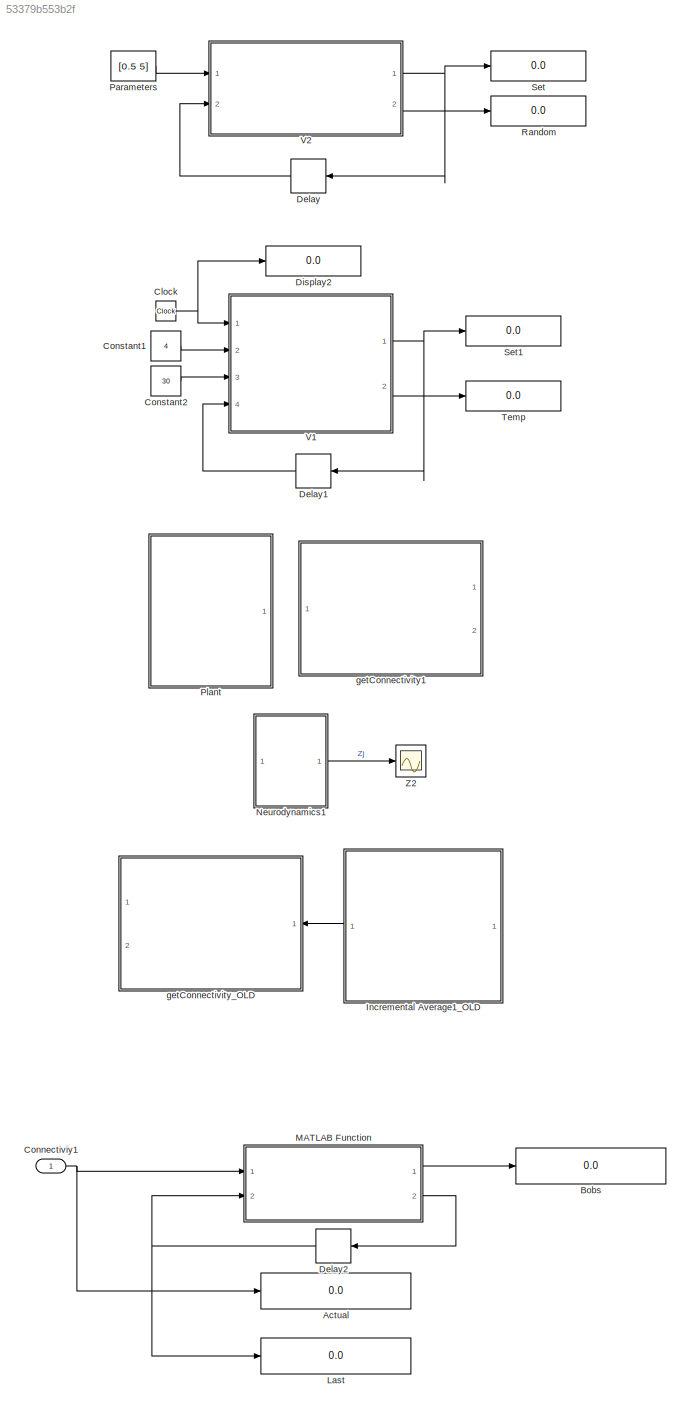
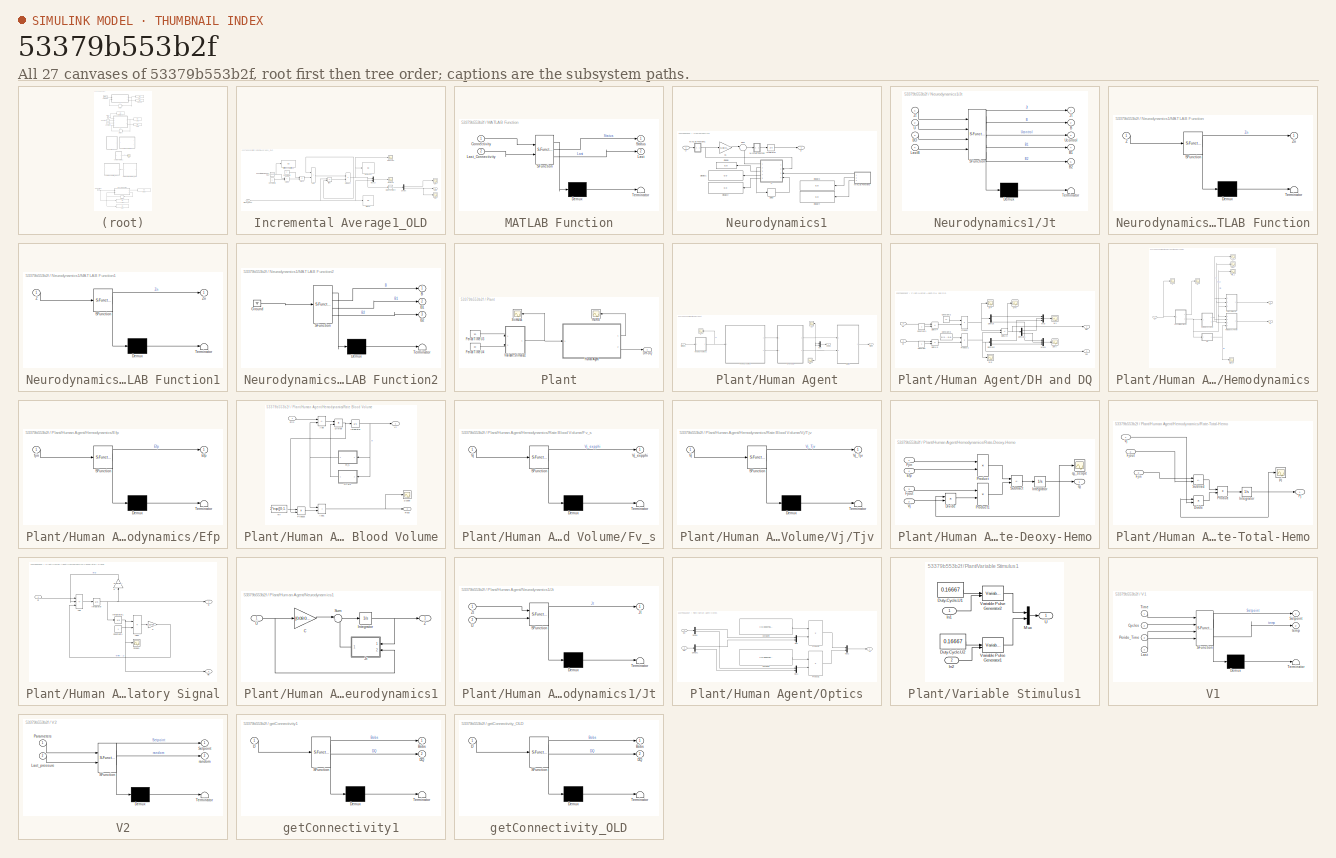
[diagram: thumbnail index - all 27 canvases of the model, root first then tree order]
MODEL slx_53379b553b2f
KIND model
CONFIG AbsTol = auto
CONFIG EnableMultiTasking = off
CONFIG FixedStep = 1
CONFIG MaxStep = auto
CONFIG MinStep = auto
CONFIG RelTol = 1e-3
CONFIG SampleTimeConstraint = Unconstrained
CONFIG SolverName = VariableStepAuto
CONFIG StartTime = 0.0
CONFIG StopTime = 120
BLOCK [Display] Actual
  Decimation = 1
  Ports = [1]
BLOCK [Display] Bobs
  Decimation = 1
  Ports = [1]
BLOCK [Clock] Clock
BLOCK [Inport] Connectiviy1
BLOCK [Constant] Constant1
  Value = 4
BLOCK [Constant] Constant2
  Value = 30
BLOCK [Delay] Delay
  DelayLength = 1
  InitialCondition = 0
  InputPortMap = u0
  Ports = [1, 1]
BLOCK [Delay] Delay1
  DelayLength = 1
  InitialCondition = 0
  InputPortMap = u0
  Ports = [1, 1]
BLOCK [Delay] Delay2
  DelayLength = 1
  InitialCondition = 0
  InputPortMap = u0
  Ports = [1, 1]
BLOCK [Display] Display2
  Decimation = 1
  Ports = [1]
BLOCK [SubSystem] Incremental Average1_OLD
  Ports = [1, 1]
  RequestExecContextInheritance = off
BLOCK [Sum] Incremental Average1_OLD/(r - Qk)
  IconShape = rectangular
  Inputs = +-
  Ports = [2, 1]
BLOCK [Product] Incremental Average1_OLD/1//K+1
  Inputs = */
  Ports = [2, 1]
BLOCK [Sum] Incremental Average1_OLD/Add
  IconShape = rectangular
  Ports = [2, 1]
BLOCK [Sum] Incremental Average1_OLD/Add1
  IconShape = rectangular
  Ports = [2, 1]
BLOCK [Outport] Incremental Average1_OLD/Avg
BLOCK [Constant] Incremental Average1_OLD/Constant4
BLOCK [Constant] Incremental Average1_OLD/Constant5
BLOCK [Reference] Incremental Average1_OLD/Counter Free-Running2  REF=simulink/Sources/Counter
Free-Running
  Ports = [0, 1]
  SourceBlock = simulink/Sources/Counter\nFree-Running
  SourceProductBaseCode = SL
  SourceType = Counter Free-Running
BLOCK [Scope] Incremental Average1_OLD/DH
  Floating = off
  NumInputPorts = 1
  Ports = [1]
  ScopeSpecificationString = Simulink.scopes.TimeScopeBlockCfg('CurrentConfiguration', extmgr.ConfigurationSet(extmgr.Configuration('Core','General UI',true,'FigureColor',[0 0 0]),extmgr.Configuration('Core','Source UI',true),extmgr.Configuration('Sources','WiredSimulink',true,'DataLoggingVariableName','ScopeData7'),extmgr.Configuration('Visuals','Time Domain',true,'SerializedDisplays',{struct('MinYLimReal','-0.00021','MaxYLi...<+2083ch>
BLOCK [Scope] Incremental Average1_OLD/DQ
  Floating = off
  NumInputPorts = 1
  Ports = [1]
  ScopeSpecificationString = Simulink.scopes.TimeScopeBlockCfg('CurrentConfiguration', extmgr.ConfigurationSet(extmgr.Configuration('Core','General UI',true,'FigureColor',[0 0 0]),extmgr.Configuration('Core','Source UI',true),extmgr.Configuration('Sources','WiredSimulink',true,'DataLoggingVariableName','ScopeData6'),extmgr.Configuration('Visuals','Time Domain',true,'SerializedDisplays',{struct('MinYLimReal','-0.00021','MaxYLi...<+2083ch>
BLOCK [Demux] Incremental Average1_OLD/Demux
  Outputs = 2
  Ports = [1, 2]
BLOCK [Display] Incremental Average1_OLD/Difference Matrix12
  Decimation = 1
  Ports = [1]
BLOCK [Math] Incremental Average1_OLD/Math Function4
  Operator = transpose
  Ports = [1, 1]
BLOCK [Mux] Incremental Average1_OLD/Mux10
  DisplayOption = bar
  Inputs = 2
  Ports = [2, 1]
BLOCK [Scope] Incremental Average1_OLD/NewAvg
  Floating = off
  NumInputPorts = 1
  Ports = [1]
  ScopeSpecificationString = Simulink.scopes.TimeScopeBlockCfg('CurrentConfiguration', extmgr.ConfigurationSet(extmgr.Configuration('Core','General UI',true,'FigureColor',[0 0 0]),extmgr.Configuration('Core','Source UI',true),extmgr.Configuration('Sources','WiredSimulink',true,'DataLoggingVariableName','ScopeData1'),extmgr.Configuration('Visuals','Time Domain',true,'SerializedDisplays',{struct('MinYLimReal','-0.00229','MaxYLi...<+2144ch>
BLOCK [Display] Incremental Average1_OLD/NewAvg1
  Decimation = 1
  Ports = [1]
BLOCK [Scope] Incremental Average1_OLD/NewAvg2
  Floating = off
  NumInputPorts = 1
  Ports = [1]
  ScopeSpecificationString = Simulink.scopes.TimeScopeBlockCfg('CurrentConfiguration', extmgr.ConfigurationSet(extmgr.Configuration('Core','General UI',true,'FigureColor',[0 0 0]),extmgr.Configuration('Core','Source UI',true),extmgr.Configuration('Sources','WiredSimulink',true,'DataLoggingVariableName','ScopeData3'),extmgr.Configuration('Visuals','Time Domain',true,'SerializedDisplays',{struct('MinYLimReal','-0.00021','MaxYLi...<+2083ch>
BLOCK [Product] Incremental Average1_OLD/Product
  Ports = [2, 1]
BLOCK [Display] Incremental Average1_OLD/Signal
  Decimation = 1
  Ports = [1]
BLOCK [Inport] Incremental Average1_OLD/Signal_input
BLOCK [Display] Last
  Decimation = 1
  Ports = [1]
BLOCK [SubSystem] MATLAB Function
  ErrorFcn = Stateflow.Translate.translate
  PermitHierarchicalResolution = ExplicitOnly
  Ports = [2, 2]
  RequestExecContextInheritance = off
  SFBlockType = MATLAB Function
  TreatAsAtomicUnit = on
BLOCK [Demux] MATLAB Function/ Demux 
  Outputs = 1
  Ports = [1, 1]
BLOCK [S-Function] MATLAB Function/ SFunction 
  EnableBusSupport = on
  FunctionName = sf_sfun
  PortCounts = [2 3]
  Ports = [2, 3]
  SFcnIsStateOwnerBlock = off
  SFunctionDeploymentMode = off
  Tag = Stateflow S-Function 12
BLOCK [Terminator] MATLAB Function/ Terminator 
BLOCK [Inport] MATLAB Function/Connectivity
BLOCK [Outport] MATLAB Function/Last
  Port = 2
BLOCK [Inport] MATLAB Function/Last_Connectivity
  Port = 2
BLOCK [Outport] MATLAB Function/Status
BLOCK [SubSystem] Neurodynamics1
  Ports = [1, 1]
  RequestExecContextInheritance = off
BLOCK [Gain] Neurodynamics1/C1
  Gain = [0.08 0;0.06 0]
  Multiplication = Matrix(K*u) (u vector)
BLOCK [Delay] Neurodynamics1/Delay
  DelayLength = 1
  InitialCondition = [1 1;1 1]
  InputPortMap = u0
  Ports = [1, 1]
BLOCK [Display] Neurodynamics1/Display
  Decimation = 1
  Ports = [1]
BLOCK [Display] Neurodynamics1/Display1
  Decimation = 1
  Ports = [1]
BLOCK [Display] Neurodynamics1/Display2
  Decimation = 1
  Ports = [1]
BLOCK [Display] Neurodynamics1/Display3
  Decimation = 1
  Ports = [1]
BLOCK [Display] Neurodynamics1/Display4
  Decimation = 1
  Ports = [1]
BLOCK [Integrator] Neurodynamics1/Integrator
  Ports = [1, 1]
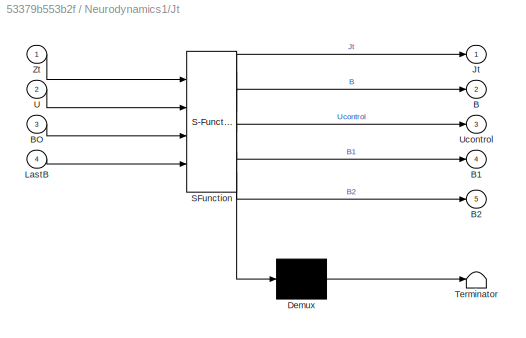
BLOCK [SubSystem] Neurodynamics1/Jt
  ErrorFcn = Stateflow.Translate.translate
  PermitHierarchicalResolution = ExplicitOnly
  Ports = [4, 5]
  RequestExecContextInheritance = off
  SFBlockType = MATLAB Function
  TreatAsAtomicUnit = on
BLOCK [Demux] Neurodynamics1/Jt/ Demux 
  Outputs = 1
  Ports = [1, 1]
BLOCK [S-Function] Neurodynamics1/Jt/ SFunction 
  EnableBusSupport = on
  FunctionName = sf_sfun
  PortCounts = [4 6]
  Ports = [4, 6]
  SFcnIsStateOwnerBlock = off
  SFunctionDeploymentMode = off
  Tag = Stateflow S-Function 2
BLOCK [Terminator] Neurodynamics1/Jt/ Terminator 
BLOCK [Outport] Neurodynamics1/Jt/B
  Port = 2
BLOCK [Outport] Neurodynamics1/Jt/B1
  Port = 4
BLOCK [Outport] Neurodynamics1/Jt/B2
  Port = 5
BLOCK [Inport] Neurodynamics1/Jt/BO
  Port = 3
BLOCK [Outport] Neurodynamics1/Jt/Jt
BLOCK [Inport] Neurodynamics1/Jt/LastB
  Port = 4
BLOCK [Inport] Neurodynamics1/Jt/U
  Port = 2
BLOCK [Outport] Neurodynamics1/Jt/Ucontrol
  Port = 3
BLOCK [Inport] Neurodynamics1/Jt/Zt
BLOCK [SubSystem] Neurodynamics1/MATLAB Function
  ErrorFcn = Stateflow.Translate.translate
  PermitHierarchicalResolution = ExplicitOnly
  Ports = [1, 1]
  RequestExecContextInheritance = off
  SFBlockType = MATLAB Function
  TreatAsAtomicUnit = on
BLOCK [Demux] Neurodynamics1/MATLAB Function/ Demux 
  Outputs = 1
  Ports = [1, 1]
BLOCK [S-Function] Neurodynamics1/MATLAB Function/ SFunction 
  EnableBusSupport = on
  FunctionName = sf_sfun
  PortCounts = [1 2]
  Ports = [1, 2]
  SFcnIsStateOwnerBlock = off
  SFunctionDeploymentMode = off
  Tag = Stateflow S-Function 6
BLOCK [Terminator] Neurodynamics1/MATLAB Function/ Terminator 
BLOCK [Inport] Neurodynamics1/MATLAB Function/Z
BLOCK [Outport] Neurodynamics1/MATLAB Function/Zn
BLOCK [SubSystem] Neurodynamics1/MATLAB Function1
  ErrorFcn = Stateflow.Translate.translate
  PermitHierarchicalResolution = ExplicitOnly
  Ports = [1, 1]
  RequestExecContextInheritance = off
  SFBlockType = MATLAB Function
  TreatAsAtomicUnit = on
BLOCK [Demux] Neurodynamics1/MATLAB Function1/ Demux 
  Outputs = 1
  Ports = [1, 1]
BLOCK [S-Function] Neurodynamics1/MATLAB Function1/ SFunction 
  EnableBusSupport = on
  FunctionName = sf_sfun
  PortCounts = [1 2]
  Ports = [1, 2]
  SFcnIsStateOwnerBlock = off
  SFunctionDeploymentMode = off
  Tag = Stateflow S-Function 7
BLOCK [Terminator] Neurodynamics1/MATLAB Function1/ Terminator 
BLOCK [Inport] Neurodynamics1/MATLAB Function1/Z
BLOCK [Outport] Neurodynamics1/MATLAB Function1/Zn
BLOCK [SubSystem] Neurodynamics1/MATLAB Function2
  ErrorFcn = Stateflow.Translate.translate
  PermitHierarchicalResolution = ExplicitOnly
  Ports = [0, 3]
  RequestExecContextInheritance = off
  SFBlockType = MATLAB Function
  TreatAsAtomicUnit = on
BLOCK [Demux] Neurodynamics1/MATLAB Function2/ Demux 
  Outputs = 1
  Ports = [1, 1]
BLOCK [Ground] Neurodynamics1/MATLAB Function2/ Ground 
BLOCK [S-Function] Neurodynamics1/MATLAB Function2/ SFunction 
  EnableBusSupport = on
  FunctionName = sf_sfun
  PortCounts = [1 4]
  Ports = [1, 4]
  SFcnIsStateOwnerBlock = off
  SFunctionDeploymentMode = off
  Tag = Stateflow S-Function 8
BLOCK [Terminator] Neurodynamics1/MATLAB Function2/ Terminator 
BLOCK [Outport] Neurodynamics1/MATLAB Function2/B
BLOCK [Outport] Neurodynamics1/MATLAB Function2/B1
  Port = 2
BLOCK [Outport] Neurodynamics1/MATLAB Function2/B2
  Port = 3
BLOCK [Sum] Neurodynamics1/Sum
  Inputs = |++
  Ports = [2, 1]
BLOCK [Inport] Neurodynamics1/U
BLOCK [Outport] Neurodynamics1/Z
BLOCK [Constant] Parameters
  Value = [0.5 5]
BLOCK [SubSystem] Plant
  Ports = [0, 1]
  RequestExecContextInheritance = off
BLOCK [Outport] Plant/DH-DQ
BLOCK [SubSystem] Plant/Human Agent
  Ports = [1, 2]
  RequestExecContextInheritance = off
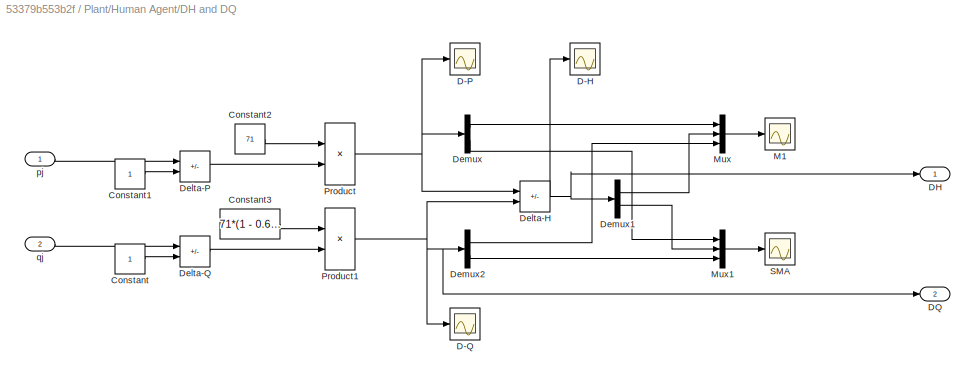
BLOCK [SubSystem] Plant/Human Agent/DH and DQ
  Ports = [2, 2]
  RequestExecContextInheritance = off
BLOCK [Constant] Plant/Human Agent/DH and DQ/Constant
BLOCK [Constant] Plant/Human Agent/DH and DQ/Constant1
BLOCK [Constant] Plant/Human Agent/DH and DQ/Constant2
  Value = 71
BLOCK [Constant] Plant/Human Agent/DH and DQ/Constant3
  Value = 71*(1 - 0.65)
BLOCK [Scope] Plant/Human Agent/DH and DQ/D-H
  Floating = off
  NumInputPorts = 1
  Ports = [1]
  ScopeSpecificationString = Simulink.scopes.TimeScopeBlockCfg('CurrentConfiguration', extmgr.ConfigurationSet(extmgr.Configuration('Core','General UI',true),extmgr.Configuration('Core','Source UI',true),extmgr.Configuration('Sources','WiredSimulink',true,'DataLoggingVariableName','ScopeData7'),extmgr.Configuration('Visuals','Time Domain',true,'SerializedDisplays',{struct('MinYLimReal','-2.91276','MaxYLimReal','17.16126','YLa...<+1449ch>
BLOCK [Scope] Plant/Human Agent/DH and DQ/D-P
  Floating = off
  NumInputPorts = 1
  Ports = [1]
  ScopeSpecificationString = Simulink.scopes.TimeScopeBlockCfg('CurrentConfiguration', extmgr.ConfigurationSet(extmgr.Configuration('Core','General UI',true),extmgr.Configuration('Core','Source UI',true),extmgr.Configuration('Sources','WiredSimulink',true,'DataLoggingVariableName','ScopeData5'),extmgr.Configuration('Visuals','Time Domain',true,'SerializedDisplays',{struct('MinYLimReal','-2.54989','MaxYLimReal','15.75385','YLa...<+1449ch>
BLOCK [Scope] Plant/Human Agent/DH and DQ/D-Q
  Floating = off
  NumInputPorts = 1
  Ports = [1]
  ScopeSpecificationString = Simulink.scopes.TimeScopeBlockCfg('CurrentConfiguration', extmgr.ConfigurationSet(extmgr.Configuration('Core','General UI',true),extmgr.Configuration('Core','Source UI',true),extmgr.Configuration('Sources','WiredSimulink',true,'DataLoggingVariableName','ScopeData6'),extmgr.Configuration('Visuals','Time Domain',true,'SerializedDisplays',{struct('MinYLimReal','-1.63975','MaxYLimReal','0.38869','YLab...<+1447ch>
BLOCK [Outport] Plant/Human Agent/DH and DQ/DH
BLOCK [Outport] Plant/Human Agent/DH and DQ/DQ
  Port = 2
BLOCK [Sum] Plant/Human Agent/DH and DQ/Delta-H
  IconShape = rectangular
  Inputs = +-
  Ports = [2, 1]
BLOCK [Sum] Plant/Human Agent/DH and DQ/Delta-P
  IconShape = rectangular
  Inputs = +-
  Ports = [2, 1]
BLOCK [Sum] Plant/Human Agent/DH and DQ/Delta-Q
  IconShape = rectangular
  Inputs = +-
  Ports = [2, 1]
BLOCK [Demux] Plant/Human Agent/DH and DQ/Demux
  Outputs = 2
  Ports = [1, 2]
BLOCK [Demux] Plant/Human Agent/DH and DQ/Demux1
  Outputs = 2
  Ports = [1, 2]
BLOCK [Demux] Plant/Human Agent/DH and DQ/Demux2
  Outputs = 2
  Ports = [1, 2]
BLOCK [Scope] Plant/Human Agent/DH and DQ/M1
  Floating = off
  NumInputPorts = 1
  Ports = [1]
  ScopeSpecificationString = Simulink.scopes.TimeScopeBlockCfg('CurrentConfiguration', extmgr.ConfigurationSet(extmgr.Configuration('Core','General UI',true),extmgr.Configuration('Core','Source UI',true),extmgr.Configuration('Sources','WiredSimulink',true,'DataLoggingVariableName','ScopeData8'),extmgr.Configuration('Visuals','Time Domain',true,'SerializedDisplays',{struct('MinYLimReal','-2.54514','MaxYLimReal','8.43627','YLab...<+1735ch>
BLOCK [Mux] Plant/Human Agent/DH and DQ/Mux
  DisplayOption = bar
  Inputs = 3
  Ports = [3, 1]
BLOCK [Mux] Plant/Human Agent/DH and DQ/Mux1
  DisplayOption = bar
  Inputs = 3
  Ports = [3, 1]
BLOCK [Product] Plant/Human Agent/DH and DQ/Product
  Ports = [2, 1]
BLOCK [Product] Plant/Human Agent/DH and DQ/Product1
  Ports = [2, 1]
BLOCK [Scope] Plant/Human Agent/DH and DQ/SMA
  Floating = off
  NumInputPorts = 1
  Ports = [1]
  ScopeSpecificationString = Simulink.scopes.TimeScopeBlockCfg('CurrentConfiguration', extmgr.ConfigurationSet(extmgr.Configuration('Core','General UI',true),extmgr.Configuration('Core','Source UI',true),extmgr.Configuration('Sources','WiredSimulink',true,'DataLoggingVariableName','ScopeData9'),extmgr.Configuration('Visuals','Time Domain',true,'SerializedDisplays',{struct('MinYLimReal','-3.33791','MaxYLimReal','17.25675','YLa...<+1774ch>
BLOCK [Inport] Plant/Human Agent/DH and DQ/pj
BLOCK [Inport] Plant/Human Agent/DH and DQ/qj
  Port = 2
BLOCK [Outport] Plant/Human Agent/DH-DQ
  Port = 2
BLOCK [SubSystem] Plant/Human Agent/Hemodynamics
  Ports = [1, 2]
  RequestExecContextInheritance = off
BLOCK [SubSystem] Plant/Human Agent/Hemodynamics/Efp
  ErrorFcn = Stateflow.Translate.translate
  PermitHierarchicalResolution = ExplicitOnly
  Ports = [1, 1]
  RequestExecContextInheritance = off
  SFBlockType = MATLAB Function
  TreatAsAtomicUnit = on
BLOCK [Demux] Plant/Human Agent/Hemodynamics/Efp/ Demux 
  Outputs = 1
  Ports = [1, 1]
BLOCK [S-Function] Plant/Human Agent/Hemodynamics/Efp/ SFunction 
  EnableBusSupport = on
  FunctionName = sf_sfun
  PortCounts = [1 2]
  Ports = [1, 2]
  SFcnIsStateOwnerBlock = off
  SFunctionDeploymentMode = off
  Tag = Stateflow S-Function 4
BLOCK [Terminator] Plant/Human Agent/Hemodynamics/Efp/ Terminator 
BLOCK [Outport] Plant/Human Agent/Hemodynamics/Efp/Efp
BLOCK [Inport] Plant/Human Agent/Hemodynamics/Efp/fjin
BLOCK [Scope] Plant/Human Agent/Hemodynamics/Efp_1
  Floating = off
  NumInputPorts = 1
  Ports = [1]
  ScopeSpecificationString = Simulink.scopes.TimeScopeBlockCfg('CurrentConfiguration', extmgr.ConfigurationSet(extmgr.Configuration('Core','General UI',true),extmgr.Configuration('Core','Source UI',true),extmgr.Configuration('Sources','WiredSimulink',true,'DataLoggingVariableName','ScopeData7'),extmgr.Configuration('Visuals','Time Domain',true,'SerializedDisplays',{struct('MinYLimReal','0.87922','MaxYLimReal','1.03497','YLabe...<+1400ch>
BLOCK [Scope] Plant/Human Agent/Hemodynamics/Fjin_1
  Floating = off
  NumInputPorts = 1
  Ports = [1]
  ScopeSpecificationString = Simulink.scopes.TimeScopeBlockCfg('CurrentConfiguration', extmgr.ConfigurationSet(extmgr.Configuration('Core','General UI',true),extmgr.Configuration('Core','Source UI',true),extmgr.Configuration('Sources','WiredSimulink',true,'DataLoggingVariableName','ScopeData6'),extmgr.Configuration('Visuals','Time Domain',true,'SerializedDisplays',{struct('MinYLimReal','0.95597','MaxYLimReal','1.16405','YLabe...<+1403ch>
BLOCK [Scope] Plant/Human Agent/Hemodynamics/Fjout
  Floating = off
  NumInputPorts = 1
  Ports = [1]
  ScopeSpecificationString = Simulink.scopes.TimeScopeBlockCfg('CurrentConfiguration', extmgr.ConfigurationSet(extmgr.Configuration('Core','General UI',true),extmgr.Configuration('Core','Source UI',true),extmgr.Configuration('Sources','WiredSimulink',true,'DataLoggingVariableName','ScopeData5'),extmgr.Configuration('Visuals','Time Domain',true,'SerializedDisplays',{struct('MinYLimReal','0.96309','MaxYLimReal','1.1501','YLabel...<+1400ch>
BLOCK [Outport] Plant/Human Agent/Hemodynamics/Pj
BLOCK [SubSystem] Plant/Human Agent/Hemodynamics/Rate Blood Volume
  Ports = [1, 2]
  RequestExecContextInheritance = off
BLOCK [Sum] Plant/Human Agent/Hemodynamics/Rate Blood Volume/Add
  IconShape = rectangular
  Inputs = +-
  Ports = [2, 1]
BLOCK [Sum] Plant/Human Agent/Hemodynamics/Rate Blood Volume/Add1
  IconShape = rectangular
  Ports = [2, 1]
BLOCK [Product] Plant/Human Agent/Hemodynamics/Rate Blood Volume/Divide
  Inputs = */
  Ports = [2, 1]
BLOCK [Inport] Plant/Human Agent/Hemodynamics/Rate Blood Volume/Fjin
BLOCK [Outport] Plant/Human Agent/Hemodynamics/Rate Blood Volume/Fjout
  Port = 2
BLOCK [SubSystem] Plant/Human Agent/Hemodynamics/Rate Blood Volume/Fv_s
  ErrorFcn = Stateflow.Translate.translate
  PermitHierarchicalResolution = ExplicitOnly
  Ports = [1, 1]
  RequestExecContextInheritance = off
  SFBlockType = MATLAB Function
  TreatAsAtomicUnit = on
BLOCK [Demux] Plant/Human Agent/Hemodynamics/Rate Blood Volume/Fv_s/ Demux 
  Outputs = 1
  Ports = [1, 1]
BLOCK [S-Function] Plant/Human Agent/Hemodynamics/Rate Blood Volume/Fv_s/ SFunction 
  EnableBusSupport = on
  FunctionName = sf_sfun
  PortCounts = [1 2]
  Ports = [1, 2]
  SFcnIsStateOwnerBlock = off
  SFunctionDeploymentMode = off
  Tag = Stateflow S-Function 13
BLOCK [Terminator] Plant/Human Agent/Hemodynamics/Rate Blood Volume/Fv_s/ Terminator 
BLOCK [Inport] Plant/Human Agent/Hemodynamics/Rate Blood Volume/Fv_s/Vj
BLOCK [Outport] Plant/Human Agent/Hemodynamics/Rate Blood Volume/Fv_s/Vj_expphi
BLOCK [Integrator] Plant/Human Agent/Hemodynamics/Rate Blood Volume/Integrator
  InitialCondition = exp([0;0])
  Ports = [1, 1]
BLOCK [Product] Plant/Human Agent/Hemodynamics/Rate Blood Volume/Product
  Ports = [2, 1]
BLOCK [Scope] Plant/Human Agent/Hemodynamics/Rate Blood Volume/Scope
  Floating = off
  NumInputPorts = 1
  Ports = [1]
  ScopeSpecificationString = Simulink.scopes.TimeScopeBlockCfg('CurrentConfiguration', extmgr.ConfigurationSet(extmgr.Configuration('Core','General UI',true),extmgr.Configuration('Core','Source UI',true),extmgr.Configuration('Sources','WiredSimulink',true,'DataLoggingVariableName','ScopeData2'),extmgr.Configuration('Visuals','Time Domain',true,'SerializedDisplays',{struct('MinYLimReal','0.96417','MaxYLimReal','1.14994','YLabe...<+1372ch>
BLOCK [Constant] Plant/Human Agent/Hemodynamics/Rate Blood Volume/Tjv
  Value = 2*exp([0;1])
BLOCK [Outport] Plant/Human Agent/Hemodynamics/Rate Blood Volume/Vj
BLOCK [SubSystem] Plant/Human Agent/Hemodynamics/Rate Blood Volume/Vj//Tjv
  ErrorFcn = Stateflow.Translate.translate
  PermitHierarchicalResolution = ExplicitOnly
  Ports = [1, 1]
  RequestExecContextInheritance = off
  SFBlockType = MATLAB Function
  TreatAsAtomicUnit = on
BLOCK [Demux] Plant/Human Agent/Hemodynamics/Rate Blood Volume/Vj//Tjv/ Demux 
  Outputs = 1
  Ports = [1, 1]
BLOCK [S-Function] Plant/Human Agent/Hemodynamics/Rate Blood Volume/Vj//Tjv/ SFunction 
  EnableBusSupport = on
  FunctionName = sf_sfun
  PortCounts = [1 2]
  Ports = [1, 2]
  SFcnIsStateOwnerBlock = off
  SFunctionDeploymentMode = off
  Tag = Stateflow S-Function 5
BLOCK [Terminator] Plant/Human Agent/Hemodynamics/Rate Blood Volume/Vj//Tjv/ Terminator 
BLOCK [Inport] Plant/Human Agent/Hemodynamics/Rate Blood Volume/Vj//Tjv/Vj
BLOCK [Outport] Plant/Human Agent/Hemodynamics/Rate Blood Volume/Vj//Tjv/Vj_Tjv
BLOCK [SubSystem] Plant/Human Agent/Hemodynamics/Rate-Deoxy-Hemo
  Ports = [4, 1]
  RequestExecContextInheritance = off
BLOCK [Product] Plant/Human Agent/Hemodynamics/Rate-Deoxy-Hemo/Divide
  Inputs = */
  Ports = [2, 1]
BLOCK [Inport] Plant/Human Agent/Hemodynamics/Rate-Deoxy-Hemo/Efp
  Port = 4
BLOCK [Inport] Plant/Human Agent/Hemodynamics/Rate-Deoxy-Hemo/Fjin
BLOCK [Inport] Plant/Human Agent/Hemodynamics/Rate-Deoxy-Hemo/Fjout
  Port = 3
BLOCK [Integrator] Plant/Human Agent/Hemodynamics/Rate-Deoxy-Hemo/Integrator
  InitialCondition = exp([0;0])
  Ports = [1, 1]
BLOCK [Product] Plant/Human Agent/Hemodynamics/Rate-Deoxy-Hemo/Product
  Ports = [2, 1]
BLOCK [Product] Plant/Human Agent/Hemodynamics/Rate-Deoxy-Hemo/Product1
  Ports = [2, 1]
BLOCK [Sum] Plant/Human Agent/Hemodynamics/Rate-Deoxy-Hemo/Subtract
  IconShape = rectangular
  Inputs = +-
  Ports = [2, 1]
BLOCK [Inport] Plant/Human Agent/Hemodynamics/Rate-Deoxy-Hemo/Vj
  Port = 2
BLOCK [Outport] Plant/Human Agent/Hemodynamics/Rate-Deoxy-Hemo/qj
BLOCK [Scope] Plant/Human Agent/Hemodynamics/Rate-Deoxy-Hemo/qj_scope
  Floating = off
  NumInputPorts = 1
  Ports = [1]
  ScopeSpecificationString = Simulink.scopes.TimeScopeBlockCfg('CurrentConfiguration', extmgr.ConfigurationSet(extmgr.Configuration('Core','General UI',true),extmgr.Configuration('Core','Source UI',true),extmgr.Configuration('Sources','WiredSimulink',true,'DataLoggingVariableName','ScopeData1'),extmgr.Configuration('Visuals','Time Domain',true,'SerializedDisplays',{struct('MinYLimReal','0.9335','MaxYLimReal','1.01624','YLabel...<+1411ch>
BLOCK [SubSystem] Plant/Human Agent/Hemodynamics/Rate-Total-Hemo
  Ports = [3, 1]
  RequestExecContextInheritance = off
BLOCK [Product] Plant/Human Agent/Hemodynamics/Rate-Total-Hemo/Divide
  Inputs = */
  Ports = [2, 1]
BLOCK [Inport] Plant/Human Agent/Hemodynamics/Rate-Total-Hemo/Fjin
  Port = 3
BLOCK [Inport] Plant/Human Agent/Hemodynamics/Rate-Total-Hemo/Fjout
  Port = 2
BLOCK [Integrator] Plant/Human Agent/Hemodynamics/Rate-Total-Hemo/Integrator
  InitialCondition = exp([0;0])
  Ports = [1, 1]
BLOCK [Outport] Plant/Human Agent/Hemodynamics/Rate-Total-Hemo/Pj
BLOCK [Product] Plant/Human Agent/Hemodynamics/Rate-Total-Hemo/Product
  Ports = [2, 1]
BLOCK [Sum] Plant/Human Agent/Hemodynamics/Rate-Total-Hemo/Subtract
  IconShape = rectangular
  Inputs = +-
  Ports = [2, 1]
BLOCK [Inport] Plant/Human Agent/Hemodynamics/Rate-Total-Hemo/Vj
BLOCK [Scope] Plant/Human Agent/Hemodynamics/Rate-Total-Hemo/pj
  Floating = off
  NumInputPorts = 1
  Ports = [1]
  ScopeSpecificationString = Simulink.scopes.TimeScopeBlockCfg('CurrentConfiguration', extmgr.ConfigurationSet(extmgr.Configuration('Core','General UI',true),extmgr.Configuration('Core','Source UI',true),extmgr.Configuration('Sources','WiredSimulink',true,'DataLoggingVariableName','ScopeData2'),extmgr.Configuration('Visuals','Time Domain',true,'SerializedDisplays',{struct('MinYLimReal','0.96327','MaxYLimReal','1.22259','YLabe...<+1415ch>
BLOCK [Scope] Plant/Human Agent/Hemodynamics/Sj
  Floating = off
  NumInputPorts = 1
  Ports = [1]
  ScopeSpecificationString = Simulink.scopes.TimeScopeBlockCfg('CurrentConfiguration', extmgr.ConfigurationSet(extmgr.Configuration('Core','General UI',true),extmgr.Configuration('Core','Source UI',true),extmgr.Configuration('Sources','WiredSimulink',true,'DataLoggingVariableName','ScopeData1'),extmgr.Configuration('Visuals','Time Domain',true,'SerializedDisplays',{struct('MinYLimReal','-0.0545','MaxYLimReal','0.05017','YLabe...<+1435ch>
BLOCK [SubSystem] Plant/Human Agent/Hemodynamics/Vasodilatory Signal
  Ports = [1, 2]
  RequestExecContextInheritance = off
BLOCK [Sum] Plant/Human Agent/Hemodynamics/Vasodilatory Signal/Add
  IconShape = rectangular
  Inputs = +--
  Ports = [3, 1]
BLOCK [Sum] Plant/Human Agent/Hemodynamics/Vasodilatory Signal/Add1
  IconShape = rectangular
  Inputs = +-
  Ports = [2, 1]
BLOCK [Constant] Plant/Human Agent/Hemodynamics/Vasodilatory Signal/Constant1
BLOCK [Outport] Plant/Human Agent/Hemodynamics/Vasodilatory Signal/Fjin
  Port = 2
BLOCK [Integrator] Plant/Human Agent/Hemodynamics/Vasodilatory Signal/Integrator
  Ports = [1, 1]
BLOCK [Integrator] Plant/Human Agent/Hemodynamics/Vasodilatory Signal/Integrator1
  InitialCondition = exp([0;0])
  Ports = [1, 1]
BLOCK [Gain] Plant/Human Agent/Hemodynamics/Vasodilatory Signal/K
  Gain = 0.64*exp([0;0.05])
  NameLocation = right
BLOCK [Scope] Plant/Human Agent/Hemodynamics/Vasodilatory Signal/Scope1
  Floating = off
  NumInputPorts = 1
  Ports = [1]
  ScopeSpecificationString = Simulink.scopes.TimeScopeBlockCfg('CurrentConfiguration', extmgr.ConfigurationSet(extmgr.Configuration('Core','General UI',true),extmgr.Configuration('Core','Source UI',true),extmgr.Configuration('Sources','WiredSimulink',true,'DataLoggingVariableName','ScopeData1'),extmgr.Configuration('Visuals','Time Domain',true,'SerializedDisplays',{struct('MinYLimReal','-0.02898','MaxYLimReal','0.08445','YLab...<+1370ch>
BLOCK [Outport] Plant/Human Agent/Hemodynamics/Vasodilatory Signal/Sj
BLOCK [Gain] Plant/Human Agent/Hemodynamics/Vasodilatory Signal/Yj
  Gain = 0.32*exp([0;0.05])
BLOCK [Inport] Plant/Human Agent/Hemodynamics/Vasodilatory Signal/Zj
BLOCK [Scope] Plant/Human Agent/Hemodynamics/Vj
  Floating = off
  NumInputPorts = 1
  Ports = [1]
  ScopeSpecificationString = Simulink.scopes.TimeScopeBlockCfg('CurrentConfiguration', extmgr.ConfigurationSet(extmgr.Configuration('Core','General UI',true),extmgr.Configuration('Core','Source UI',true),extmgr.Configuration('Sources','WiredSimulink',true,'DataLoggingVariableName','ScopeData4'),extmgr.Configuration('Visuals','Time Domain',true,'SerializedDisplays',{struct('MinYLimReal','0.98899','MaxYLimReal','1.04469','YLabe...<+1398ch>
BLOCK [Scope] Plant/Human Agent/Hemodynamics/Z
  Floating = off
  NumInputPorts = 1
  Ports = [1]
  ScopeSpecificationString = Simulink.scopes.TimeScopeBlockCfg('CurrentConfiguration', extmgr.ConfigurationSet(extmgr.Configuration('Core','General UI',true),extmgr.Configuration('Core','Source UI',true),extmgr.Configuration('Sources','WiredSimulink',true),extmgr.Configuration('Visuals','Time Domain',true,'SerializedDisplays',{struct('MinYLimReal','-0.01031','MaxYLimReal','0.05684','YLabelReal','','MinYLimMag','0.00000','MaxY...<+1359ch>
BLOCK [Inport] Plant/Human Agent/Hemodynamics/Zj
BLOCK [Outport] Plant/Human Agent/Hemodynamics/qj
  Port = 2
BLOCK [Mux] Plant/Human Agent/Mux
  DisplayOption = bar
  Inputs = 2
  Ports = [2, 1]
BLOCK [SubSystem] Plant/Human Agent/Neurodynamics1
  Ports = [1, 1]
  RequestExecContextInheritance = off
BLOCK [Gain] Plant/Human Agent/Neurodynamics1/C
  Gain = [0.08 0;0.06 0]
  Multiplication = Matrix(K*u)
BLOCK [Integrator] Plant/Human Agent/Neurodynamics1/Integrator
  Ports = [1, 1]
BLOCK [SubSystem] Plant/Human Agent/Neurodynamics1/Jt
  ErrorFcn = Stateflow.Translate.translate
  PermitHierarchicalResolution = ExplicitOnly
  Ports = [2, 1]
  RequestExecContextInheritance = off
  SFBlockType = MATLAB Function
  TreatAsAtomicUnit = on
BLOCK [Demux] Plant/Human Agent/Neurodynamics1/Jt/ Demux 
  Outputs = 1
  Ports = [1, 1]
BLOCK [S-Function] Plant/Human Agent/Neurodynamics1/Jt/ SFunction 
  EnableBusSupport = on
  FunctionName = sf_sfun
  PortCounts = [2 2]
  Ports = [2, 2]
  SFcnIsStateOwnerBlock = off
  SFunctionDeploymentMode = off
  Tag = Stateflow S-Function 9
BLOCK [Terminator] Plant/Human Agent/Neurodynamics1/Jt/ Terminator 
BLOCK [Outport] Plant/Human Agent/Neurodynamics1/Jt/Jt
BLOCK [Inport] Plant/Human Agent/Neurodynamics1/Jt/U
  Port = 2
BLOCK [Inport] Plant/Human Agent/Neurodynamics1/Jt/Zt
BLOCK [Sum] Plant/Human Agent/Neurodynamics1/Sum
  Inputs = |++
  Ports = [2, 1]
BLOCK [Inport] Plant/Human Agent/Neurodynamics1/U
BLOCK [Outport] Plant/Human Agent/Neurodynamics1/Z
BLOCK [SubSystem] Plant/Human Agent/Optics
  Ports = [2, 1]
  RequestExecContextInheritance = off
BLOCK [Constant] Plant/Human Agent/Optics/Constant1
  Value = [(0.00007358252*7.5) (0.0001104714*6.5);(0.0001159306*7.5) (0.00007858993*6.5)]
BLOCK [Constant] Plant/Human Agent/Optics/Constant4
  Value = [(0.00007358252*7.5) (0.0001104714*6.5);(0.0001159306*7.5) (0.00007858993*6.5)]
BLOCK [Inport] Plant/Human Agent/Optics/DH
BLOCK [Inport] Plant/Human Agent/Optics/DQ
  Port = 2
BLOCK [Demux] Plant/Human Agent/Optics/Demux
  Outputs = 2
  Ports = [1, 2]
BLOCK [Demux] Plant/Human Agent/Optics/Demux1
  Outputs = 2
  Ports = [1, 2]
BLOCK [Mux] Plant/Human Agent/Optics/Mux
  DisplayOption = bar
  Inputs = 2
  Ports = [2, 1]
BLOCK [Mux] Plant/Human Agent/Optics/Mux1
  DisplayOption = bar
  Inputs = 2
  Ports = [2, 1]
BLOCK [Mux] Plant/Human Agent/Optics/Mux2
  DisplayOption = bar
  Inputs = 2
  Ports = [2, 1]
BLOCK [Product] Plant/Human Agent/Optics/Product1
  Multiplication = Matrix(*)
  Ports = [2, 1]
BLOCK [Product] Plant/Human Agent/Optics/Product2
  Multiplication = Matrix(*)
  Ports = [2, 1]
BLOCK [Outport] Plant/Human Agent/Optics/Y1
BLOCK [Inport] Plant/Human Agent/Stimulus
BLOCK [Scope] Plant/Human Agent/Z
  Floating = off
  NumInputPorts = 1
  Ports = [1]
  ScopeSpecificationString = Simulink.scopes.TimeScopeBlockCfg('CurrentConfiguration', extmgr.ConfigurationSet(extmgr.Configuration('Core','General UI',true,'FigureColor',[0 0 0]),extmgr.Configuration('Core','Source UI',true),extmgr.Configuration('Sources','WiredSimulink',true,'DataLoggingVariableName','ScopeData1'),extmgr.Configuration('Visuals','Time Domain',true,'SerializedDisplays',{struct('MinYLimReal','-0.01059','MaxYLi...<+1646ch>
BLOCK [Scope] Plant/Human Agent/Z1
  Floating = off
  NumInputPorts = 1
  Ports = [1]
  ScopeSpecificationString = Simulink.scopes.TimeScopeBlockCfg('CurrentConfiguration', extmgr.ConfigurationSet(extmgr.Configuration('Core','General UI',true,'FigureColor',[0 0 0]),extmgr.Configuration('Core','Source UI',true),extmgr.Configuration('Sources','WiredSimulink',true,'DataLoggingVariableName','ScopeData4'),extmgr.Configuration('Visuals','Time Domain',true,'SerializedDisplays',{struct('MinYLimReal','-1.64476','MaxYLi...<+1664ch>
BLOCK [Scope] Plant/Human Agent/Z2
  Floating = off
  NumInputPorts = 1
  Ports = [1]
  ScopeSpecificationString = Simulink.scopes.TimeScopeBlockCfg('CurrentConfiguration', extmgr.ConfigurationSet(extmgr.Configuration('Core','General UI',true,'FigureColor',[0 0 0]),extmgr.Configuration('Core','Source UI',true),extmgr.Configuration('Sources','WiredSimulink',true,'DataLoggingVariableName','ScopeData5'),extmgr.Configuration('Visuals','Time Domain',true,'SerializedDisplays',{struct('MinYLimReal','-2.88252','MaxYLi...<+1665ch>
BLOCK [Outport] Plant/Human Agent/fNIRS
BLOCK [Constant] Plant/Period Time U3
  Value = 30
BLOCK [Constant] Plant/Period Time U4
  Value = 30
BLOCK [Scope] Plant/Stimulus
  Floating = off
  NumInputPorts = 1
  Ports = [1]
  ScopeSpecificationString = Simulink.scopes.TimeScopeBlockCfg('CurrentConfiguration', extmgr.ConfigurationSet(extmgr.Configuration('Core','General UI',true,'FigureColor',[0 0 0]),extmgr.Configuration('Core','Source UI',true),extmgr.Configuration('Sources','WiredSimulink',true,'DataLoggingVariableName','ScopeData2'),extmgr.Configuration('Visuals','Time Domain',true,'SerializedDisplays',{struct('MinYLimReal','-0.125','MaxYLimR...<+1666ch>
BLOCK [SubSystem] Plant/Variable Stimulus1
  Ports = [2, 1]
  RequestExecContextInheritance = off
BLOCK [Constant] Plant/Variable Stimulus1/Duty-Cycle-U1
  OutMax = [0.8]
  OutMin = [0]
  Value = 0.16667
BLOCK [Constant] Plant/Variable Stimulus1/Duty-Cycle-U2
  OutMax = [0.8]
  OutMin = [0]
  Value = 0.16667
BLOCK [Inport] Plant/Variable Stimulus1/In1
BLOCK [Inport] Plant/Variable Stimulus1/In2
  Port = 2
BLOCK [Mux] Plant/Variable Stimulus1/Mux
  DisplayOption = bar
  Inputs = 2
  Ports = [2, 1]
BLOCK [Outport] Plant/Variable Stimulus1/U
BLOCK [VariablePulseGenerator] Plant/Variable Stimulus1/Variable Pulse Generator1
  RunAtFixedTimeIntervals = on
  SampleTime = 1/100
BLOCK [VariablePulseGenerator] Plant/Variable Stimulus1/Variable Pulse Generator2
  RunAtFixedTimeIntervals = on
  SampleTime = 1/100
BLOCK [Scope] Plant/fNIRS
  Floating = off
  NumInputPorts = 1
  Ports = [1]
  ScopeSpecificationString = Simulink.scopes.TimeScopeBlockCfg('CurrentConfiguration', extmgr.ConfigurationSet(extmgr.Configuration('Core','General UI',true,'FigureColor',[0 0 0]),extmgr.Configuration('Core','Source UI',true),extmgr.Configuration('Sources','WiredSimulink',true,'DataLoggingVariableName','ScopeData1'),extmgr.Configuration('Visuals','Time Domain',true,'SerializedDisplays',{struct('MinYLimReal','-0.125','MaxYLimR...<+1666ch>
BLOCK [Display] Random
  Decimation = 1
  Ports = [1]
BLOCK [Display] Set
  Decimation = 1
  Ports = [1]
BLOCK [Display] Set1
  Decimation = 1
  Ports = [1]
BLOCK [Display] Temp
  Decimation = 1
  Ports = [1]
BLOCK [SubSystem] V1
  ErrorFcn = Stateflow.Translate.translate
  PermitHierarchicalResolution = ExplicitOnly
  Ports = [4, 2]
  RequestExecContextInheritance = off
  SFBlockType = MATLAB Function
  TreatAsAtomicUnit = on
BLOCK [Demux] V1/ Demux 
  Outputs = 1
  Ports = [1, 1]
BLOCK [S-Function] V1/ SFunction 
  EnableBusSupport = on
  FunctionName = sf_sfun
  PortCounts = [4 3]
  Ports = [4, 3]
  SFcnIsStateOwnerBlock = off
  SFunctionDeploymentMode = off
  Tag = Stateflow S-Function 1
BLOCK [Terminator] V1/ Terminator 
BLOCK [Inport] V1/Cycles
  Port = 2
BLOCK [Inport] V1/Last
  Port = 4
BLOCK [Inport] V1/Perido_Time
  Port = 3
BLOCK [Outport] V1/Setpoint
BLOCK [Inport] V1/Time
BLOCK [Outport] V1/temp
  Port = 2
BLOCK [SubSystem] V2
  ErrorFcn = Stateflow.Translate.translate
  PermitHierarchicalResolution = ExplicitOnly
  Ports = [2, 2]
  RequestExecContextInheritance = off
  SFBlockType = MATLAB Function
  TreatAsAtomicUnit = on
BLOCK [Demux] V2/ Demux 
  Outputs = 1
  Ports = [1, 1]
BLOCK [S-Function] V2/ SFunction 
  EnableBusSupport = on
  FunctionName = sf_sfun
  PortCounts = [2 3]
  Ports = [2, 3]
  SFcnIsStateOwnerBlock = off
  SFunctionDeploymentMode = off
  Tag = Stateflow S-Function 3
BLOCK [Terminator] V2/ Terminator 
BLOCK [Inport] V2/Last_pressure
  Port = 2
BLOCK [Inport] V2/Parameters
BLOCK [Outport] V2/Setpoint
BLOCK [Outport] V2/random
  Port = 2
BLOCK [Scope] Z2
  Floating = off
  NumInputPorts = 1
  Ports = [1]
  ScopeSpecificationString = Simulink.scopes.TimeScopeBlockCfg('CurrentConfiguration', extmgr.ConfigurationSet(extmgr.Configuration('Core','General UI',true,'FigureColor',[0 0 0]),extmgr.Configuration('Core','Source UI',true),extmgr.Configuration('Sources','WiredSimulink',true),extmgr.Configuration('Visuals','Time Domain',true,'SerializedDisplays',{struct('MinYLimReal','-1.76203','MaxYLimReal','0.68127','YLabelReal','','MinYL...<+1606ch>
BLOCK [SubSystem] getConnectivity1
  ErrorFcn = Stateflow.Translate.translate
  PermitHierarchicalResolution = ExplicitOnly
  Ports = [1, 2]
  RequestExecContextInheritance = off
  SFBlockType = MATLAB Function
  SystemSampleTime = 0
  TreatAsAtomicUnit = on
BLOCK [Demux] getConnectivity1/ Demux 
  Outputs = 1
  Ports = [1, 1]
BLOCK [S-Function] getConnectivity1/ SFunction 
  EnableBusSupport = on
  FunctionName = sf_sfun
  PortCounts = [1 3]
  Ports = [1, 3]
  SFcnIsStateOwnerBlock = off
  SFunctionDeploymentMode = off
  Tag = Stateflow S-Function 10
BLOCK [Terminator] getConnectivity1/ Terminator 
BLOCK [Outport] getConnectivity1/Bobs
BLOCK [Inport] getConnectivity1/D
BLOCK [Outport] getConnectivity1/DQ
  Port = 2
BLOCK [SubSystem] getConnectivity_OLD
  ErrorFcn = Stateflow.Translate.translate
  PermitHierarchicalResolution = ExplicitOnly
  Ports = [1, 2]
  RequestExecContextInheritance = off
  SFBlockType = MATLAB Function
  SystemSampleTime = 0
  TreatAsAtomicUnit = on
BLOCK [Demux] getConnectivity_OLD/ Demux 
  Outputs = 1
  Ports = [1, 1]
BLOCK [S-Function] getConnectivity_OLD/ SFunction 
  EnableBusSupport = on
  FunctionName = sf_sfun
  PortCounts = [1 3]
  Ports = [1, 3]
  SFcnIsStateOwnerBlock = off
  SFunctionDeploymentMode = off
  Tag = Stateflow S-Function 16
BLOCK [Terminator] getConnectivity_OLD/ Terminator 
BLOCK [Outport] getConnectivity_OLD/Bobs
BLOCK [Inport] getConnectivity_OLD/D
BLOCK [Outport] getConnectivity_OLD/DQ
  Port = 2
NET Clock:1 -> Display2:1, V1:1
NET Connectiviy1:1 -> Actual:1, MATLAB Function:1
LINE Constant1:1 -> V1:2
LINE Constant2:1 -> V1:3
LINE Delay1:1 -> V1:4
NET Delay2:1 -> Last:1, MATLAB Function:2
LINE Delay:1 -> V2:2
LINE Incremental Average1_OLD/(r - Qk):1 -> Incremental Average1_OLD/Product:2
LINE Incremental Average1_OLD/1//K+1:1 -> Incremental Average1_OLD/Add:2
LINE Incremental Average1_OLD/Add1:1 -> Incremental Average1_OLD/1//K+1:2
LINE Incremental Average1_OLD/Add:1 -> Incremental Average1_OLD/Product:1
LINE Incremental Average1_OLD/Constant4:1 -> Incremental Average1_OLD/1//K+1:1
LINE Incremental Average1_OLD/Constant5:1 -> Incremental Average1_OLD/Add1:2
NET Incremental Average1_OLD/Counter Free-Running2:1 -> Incremental Average1_OLD/Add1:1, Incremental Average1_OLD/Difference Matrix12:1
LINE Incremental Average1_OLD/Demux:1 -> Incremental Average1_OLD/DH:1
NET Incremental Average1_OLD/Demux:2 -> Incremental Average1_OLD/Avg:1, Incremental Average1_OLD/DQ:1
LINE Incremental Average1_OLD/Math Function4:1 -> Incremental Average1_OLD/Demux:1
LINE Incremental Average1_OLD/Mux10:1 -> Incremental Average1_OLD/NewAvg:1
NET Incremental Average1_OLD/Product:1 -> Incremental Average1_OLD/(r - Qk):2, Incremental Average1_OLD/Add:1, Incremental Average1_OLD/Math Function4:1, Incremental Average1_OLD/Mux10:1, Incremental Average1_OLD/NewAvg1:1, Incremental Average1_OLD/NewAvg2:1
NET Incremental Average1_OLD/Signal_input:1 -> Incremental Average1_OLD/(r - Qk):1, Incremental Average1_OLD/Mux10:2, Incremental Average1_OLD/Signal:1
LINE Incremental Average1_OLD:1 -> getConnectivity_OLD:1
LINE MATLAB Function:1 -> Bobs:1
LINE MATLAB Function:2 -> Delay2:1
LINE Neurodynamics1/C1:1 -> Neurodynamics1/Sum:1
LINE Neurodynamics1/Delay:1 -> Neurodynamics1/Jt:4
LINE Neurodynamics1/Integrator:1 -> Neurodynamics1/Z:1
LINE Neurodynamics1/Jt:1 -> Neurodynamics1/Sum:2
LINE Neurodynamics1/Jt:2 -> Neurodynamics1/Delay:1
LINE Neurodynamics1/Jt:3 -> Neurodynamics1/Display:1
LINE Neurodynamics1/Jt:4 -> Neurodynamics1/Display1:1
LINE Neurodynamics1/Jt:5 -> Neurodynamics1/Display2:1
NET Neurodynamics1/MATLAB Function1:1 -> Neurodynamics1/C1:1, Neurodynamics1/Jt:2
LINE Neurodynamics1/MATLAB Function2:1 -> Neurodynamics1/Jt:3
LINE Neurodynamics1/MATLAB Function2:2 -> Neurodynamics1/Display3:1
LINE Neurodynamics1/MATLAB Function2:3 -> Neurodynamics1/Display4:1
LINE Neurodynamics1/MATLAB Function:1 -> Neurodynamics1/Integrator:1
LINE Neurodynamics1/Sum:1 -> Neurodynamics1/MATLAB Function:1
LINE Neurodynamics1/U:1 -> Neurodynamics1/MATLAB Function1:1
LINE Neurodynamics1:1 -> Z2:1
LINE Parameters:1 -> V2:1
LINE Plant/Human Agent/DH and DQ/Constant1:1 -> Plant/Human Agent/DH and DQ/Delta-P:2
LINE Plant/Human Agent/DH and DQ/Constant2:1 -> Plant/Human Agent/DH and DQ/Product:1
LINE Plant/Human Agent/DH and DQ/Constant3:1 -> Plant/Human Agent/DH and DQ/Product1:1
LINE Plant/Human Agent/DH and DQ/Constant:1 -> Plant/Human Agent/DH and DQ/Delta-Q:2
NET Plant/Human Agent/DH and DQ/Delta-H:1 -> Plant/Human Agent/DH and DQ/D-H:1, Plant/Human Agent/DH and DQ/DH:1, Plant/Human Agent/DH and DQ/Demux1:1
LINE Plant/Human Agent/DH and DQ/Delta-P:1 -> Plant/Human Agent/DH and DQ/Product:2
LINE Plant/Human Agent/DH and DQ/Delta-Q:1 -> Plant/Human Agent/DH and DQ/Product1:2
LINE Plant/Human Agent/DH and DQ/Demux1:1 -> Plant/Human Agent/DH and DQ/Mux:2
LINE Plant/Human Agent/DH and DQ/Demux1:2 -> Plant/Human Agent/DH and DQ/Mux1:2
LINE Plant/Human Agent/DH and DQ/Demux2:1 -> Plant/Human Agent/DH and DQ/Mux:3
LINE Plant/Human Agent/DH and DQ/Demux2:2 -> Plant/Human Agent/DH and DQ/Mux1:3
LINE Plant/Human Agent/DH and DQ/Demux:1 -> Plant/Human Agent/DH and DQ/Mux:1
LINE Plant/Human Agent/DH and DQ/Demux:2 -> Plant/Human Agent/DH and DQ/Mux1:1
LINE Plant/Human Agent/DH and DQ/Mux1:1 -> Plant/Human Agent/DH and DQ/SMA:1
LINE Plant/Human Agent/DH and DQ/Mux:1 -> Plant/Human Agent/DH and DQ/M1:1
NET Plant/Human Agent/DH and DQ/Product1:1 -> Plant/Human Agent/DH and DQ/D-Q:1, Plant/Human Agent/DH and DQ/DQ:1, Plant/Human Agent/DH and DQ/Delta-H:2, Plant/Human Agent/DH and DQ/Demux2:1
NET Plant/Human Agent/DH and DQ/Product:1 -> Plant/Human Agent/DH and DQ/D-P:1, Plant/Human Agent/DH and DQ/Delta-H:1, Plant/Human Agent/DH and DQ/Demux:1
LINE Plant/Human Agent/DH and DQ/pj:1 -> Plant/Human Agent/DH and DQ/Delta-P:1
LINE Plant/Human Agent/DH and DQ/qj:1 -> Plant/Human Agent/DH and DQ/Delta-Q:1
NET Plant/Human Agent/DH and DQ:1 -> Plant/Human Agent/Mux:1, Plant/Human Agent/Optics:1, Plant/Human Agent/Z2:1
NET Plant/Human Agent/DH and DQ:2 -> Plant/Human Agent/Mux:2, Plant/Human Agent/Optics:2, Plant/Human Agent/Z1:1
NET Plant/Human Agent/Hemodynamics/Efp:1 -> Plant/Human Agent/Hemodynamics/Efp_1:1, Plant/Human Agent/Hemodynamics/Rate-Deoxy-Hemo:4
NET Plant/Human Agent/Hemodynamics/Rate Blood Volume/Add1:1 -> Plant/Human Agent/Hemodynamics/Rate Blood Volume/Fjout:1, Plant/Human Agent/Hemodynamics/Rate Blood Volume/Scope:1
LINE Plant/Human Agent/Hemodynamics/Rate Blood Volume/Add:1 -> Plant/Human Agent/Hemodynamics/Rate Blood Volume/Divide:1
NET Plant/Human Agent/Hemodynamics/Rate Blood Volume/Divide:1 -> Plant/Human Agent/Hemodynamics/Rate Blood Volume/Integrator:1, Plant/Human Agent/Hemodynamics/Rate Blood Volume/Product:2
LINE Plant/Human Agent/Hemodynamics/Rate Blood Volume/Fjin:1 -> Plant/Human Agent/Hemodynamics/Rate Blood Volume/Add:1
NET Plant/Human Agent/Hemodynamics/Rate Blood Volume/Fv_s:1 -> Plant/Human Agent/Hemodynamics/Rate Blood Volume/Add1:1, Plant/Human Agent/Hemodynamics/Rate Blood Volume/Add:2
NET Plant/Human Agent/Hemodynamics/Rate Blood Volume/Integrator:1 -> Plant/Human Agent/Hemodynamics/Rate Blood Volume/Fv_s:1, Plant/Human Agent/Hemodynamics/Rate Blood Volume/Vj//Tjv:1, Plant/Human Agent/Hemodynamics/Rate Blood Volume/Vj:1
LINE Plant/Human Agent/Hemodynamics/Rate Blood Volume/Product:1 -> Plant/Human Agent/Hemodynamics/Rate Blood Volume/Add1:2
LINE Plant/Human Agent/Hemodynamics/Rate Blood Volume/Tjv:1 -> Plant/Human Agent/Hemodynamics/Rate Blood Volume/Product:1
LINE Plant/Human Agent/Hemodynamics/Rate Blood Volume/Vj//Tjv:1 -> Plant/Human Agent/Hemodynamics/Rate Blood Volume/Divide:2
NET Plant/Human Agent/Hemodynamics/Rate Blood Volume:1 -> Plant/Human Agent/Hemodynamics/Rate-Deoxy-Hemo:2, Plant/Human Agent/Hemodynamics/Rate-Total-Hemo:1, Plant/Human Agent/Hemodynamics/Vj:1
NET Plant/Human Agent/Hemodynamics/Rate Blood Volume:2 -> Plant/Human Agent/Hemodynamics/Fjout:1, Plant/Human Agent/Hemodynamics/Rate-Deoxy-Hemo:3, Plant/Human Agent/Hemodynamics/Rate-Total-Hemo:2
LINE Plant/Human Agent/Hemodynamics/Rate-Deoxy-Hemo/Divide:1 -> Plant/Human Agent/Hemodynamics/Rate-Deoxy-Hemo/Product1:2
LINE Plant/Human Agent/Hemodynamics/Rate-Deoxy-Hemo/Efp:1 -> Plant/Human Agent/Hemodynamics/Rate-Deoxy-Hemo/Product:2
LINE Plant/Human Agent/Hemodynamics/Rate-Deoxy-Hemo/Fjin:1 -> Plant/Human Agent/Hemodynamics/Rate-Deoxy-Hemo/Product:1
LINE Plant/Human Agent/Hemodynamics/Rate-Deoxy-Hemo/Fjout:1 -> Plant/Human Agent/Hemodynamics/Rate-Deoxy-Hemo/Product1:1
NET Plant/Human Agent/Hemodynamics/Rate-Deoxy-Hemo/Integrator:1 -> Plant/Human Agent/Hemodynamics/Rate-Deoxy-Hemo/Divide:1, Plant/Human Agent/Hemodynamics/Rate-Deoxy-Hemo/qj:1, Plant/Human Agent/Hemodynamics/Rate-Deoxy-Hemo/qj_scope:1
LINE Plant/Human Agent/Hemodynamics/Rate-Deoxy-Hemo/Product1:1 -> Plant/Human Agent/Hemodynamics/Rate-Deoxy-Hemo/Subtract:2
LINE Plant/Human Agent/Hemodynamics/Rate-Deoxy-Hemo/Product:1 -> Plant/Human Agent/Hemodynamics/Rate-Deoxy-Hemo/Subtract:1
LINE Plant/Human Agent/Hemodynamics/Rate-Deoxy-Hemo/Subtract:1 -> Plant/Human Agent/Hemodynamics/Rate-Deoxy-Hemo/Integrator:1
LINE Plant/Human Agent/Hemodynamics/Rate-Deoxy-Hemo/Vj:1 -> Plant/Human Agent/Hemodynamics/Rate-Deoxy-Hemo/Divide:2
LINE Plant/Human Agent/Hemodynamics/Rate-Deoxy-Hemo:1 -> Plant/Human Agent/Hemodynamics/qj:1
LINE Plant/Human Agent/Hemodynamics/Rate-Total-Hemo/Divide:1 -> Plant/Human Agent/Hemodynamics/Rate-Total-Hemo/Product:2
LINE Plant/Human Agent/Hemodynamics/Rate-Total-Hemo/Fjin:1 -> Plant/Human Agent/Hemodynamics/Rate-Total-Hemo/Subtract:1
LINE Plant/Human Agent/Hemodynamics/Rate-Total-Hemo/Fjout:1 -> Plant/Human Agent/Hemodynamics/Rate-Total-Hemo/Subtract:2
NET Plant/Human Agent/Hemodynamics/Rate-Total-Hemo/Integrator:1 -> Plant/Human Agent/Hemodynamics/Rate-Total-Hemo/Divide:1, Plant/Human Agent/Hemodynamics/Rate-Total-Hemo/Pj:1, Plant/Human Agent/Hemodynamics/Rate-Total-Hemo/pj:1
LINE Plant/Human Agent/Hemodynamics/Rate-Total-Hemo/Product:1 -> Plant/Human Agent/Hemodynamics/Rate-Total-Hemo/Integrator:1
LINE Plant/Human Agent/Hemodynamics/Rate-Total-Hemo/Subtract:1 -> Plant/Human Agent/Hemodynamics/Rate-Total-Hemo/Product:1
LINE Plant/Human Agent/Hemodynamics/Rate-Total-Hemo/Vj:1 -> Plant/Human Agent/Hemodynamics/Rate-Total-Hemo/Divide:2
LINE Plant/Human Agent/Hemodynamics/Rate-Total-Hemo:1 -> Plant/Human Agent/Hemodynamics/Pj:1
LINE Plant/Human Agent/Hemodynamics/Vasodilatory Signal/Add1:1 -> Plant/Human Agent/Hemodynamics/Vasodilatory Signal/Yj:1
LINE Plant/Human Agent/Hemodynamics/Vasodilatory Signal/Add:1 -> Plant/Human Agent/Hemodynamics/Vasodilatory Signal/Integrator:1
LINE Plant/Human Agent/Hemodynamics/Vasodilatory Signal/Constant1:1 -> Plant/Human Agent/Hemodynamics/Vasodilatory Signal/Add1:2
NET Plant/Human Agent/Hemodynamics/Vasodilatory Signal/Integrator1:1 -> Plant/Human Agent/Hemodynamics/Vasodilatory Signal/Add1:1, Plant/Human Agent/Hemodynamics/Vasodilatory Signal/Fjin:1, Plant/Human Agent/Hemodynamics/Vasodilatory Signal/Scope1:1
NET Plant/Human Agent/Hemodynamics/Vasodilatory Signal/Integrator:1 -> Plant/Human Agent/Hemodynamics/Vasodilatory Signal/Integrator1:1, Plant/Human Agent/Hemodynamics/Vasodilatory Signal/K:1, Plant/Human Agent/Hemodynamics/Vasodilatory Signal/Sj:1
LINE Plant/Human Agent/Hemodynamics/Vasodilatory Signal/K:1 -> Plant/Human Agent/Hemodynamics/Vasodilatory Signal/Add:2
LINE Plant/Human Agent/Hemodynamics/Vasodilatory Signal/Yj:1 -> Plant/Human Agent/Hemodynamics/Vasodilatory Signal/Add:3
LINE Plant/Human Agent/Hemodynamics/Vasodilatory Signal/Zj:1 -> Plant/Human Agent/Hemodynamics/Vasodilatory Signal/Add:1
LINE Plant/Human Agent/Hemodynamics/Vasodilatory Signal:1 -> Plant/Human Agent/Hemodynamics/Sj:1
NET Plant/Human Agent/Hemodynamics/Vasodilatory Signal:2 -> Plant/Human Agent/Hemodynamics/Efp:1, Plant/Human Agent/Hemodynamics/Fjin_1:1, Plant/Human Agent/Hemodynamics/Rate Blood Volume:1, Plant/Human Agent/Hemodynamics/Rate-Deoxy-Hemo:1, Plant/Human Agent/Hemodynamics/Rate-Total-Hemo:3
NET Plant/Human Agent/Hemodynamics/Zj:1 -> Plant/Human Agent/Hemodynamics/Vasodilatory Signal:1, Plant/Human Agent/Hemodynamics/Z:1
LINE Plant/Human Agent/Hemodynamics:1 -> Plant/Human Agent/DH and DQ:1
LINE Plant/Human Agent/Hemodynamics:2 -> Plant/Human Agent/DH and DQ:2
LINE Plant/Human Agent/Mux:1 -> Plant/Human Agent/DH-DQ:1
LINE Plant/Human Agent/Neurodynamics1/C:1 -> Plant/Human Agent/Neurodynamics1/Sum:1
NET Plant/Human Agent/Neurodynamics1/Integrator:1 -> Plant/Human Agent/Neurodynamics1/Jt:1, Plant/Human Agent/Neurodynamics1/Z:1
LINE Plant/Human Agent/Neurodynamics1/Jt:1 -> Plant/Human Agent/Neurodynamics1/Sum:2
LINE Plant/Human Agent/Neurodynamics1/Sum:1 -> Plant/Human Agent/Neurodynamics1/Integrator:1
NET Plant/Human Agent/Neurodynamics1/U:1 -> Plant/Human Agent/Neurodynamics1/C:1, Plant/Human Agent/Neurodynamics1/Jt:2
NET Plant/Human Agent/Neurodynamics1:1 -> Plant/Human Agent/Hemodynamics:1, Plant/Human Agent/Z:1
LINE Plant/Human Agent/Optics/Constant1:1 -> Plant/Human Agent/Optics/Product1:1
LINE Plant/Human Agent/Optics/Constant4:1 -> Plant/Human Agent/Optics/Product2:1
LINE Plant/Human Agent/Optics/DH:1 -> Plant/Human Agent/Optics/Demux:1
LINE Plant/Human Agent/Optics/DQ:1 -> Plant/Human Agent/Optics/Demux1:1
LINE Plant/Human Agent/Optics/Demux1:1 -> Plant/Human Agent/Optics/Mux:2
LINE Plant/Human Agent/Optics/Demux1:2 -> Plant/Human Agent/Optics/Mux1:2
LINE Plant/Human Agent/Optics/Demux:1 -> Plant/Human Agent/Optics/Mux:1
LINE Plant/Human Agent/Optics/Demux:2 -> Plant/Human Agent/Optics/Mux1:1
LINE Plant/Human Agent/Optics/Mux1:1 -> Plant/Human Agent/Optics/Product1:2
LINE Plant/Human Agent/Optics/Mux2:1 -> Plant/Human Agent/Optics/Y1:1
LINE Plant/Human Agent/Optics/Mux:1 -> Plant/Human Agent/Optics/Product2:2
LINE Plant/Human Agent/Optics/Product1:1 -> Plant/Human Agent/Optics/Mux2:2
LINE Plant/Human Agent/Optics/Product2:1 -> Plant/Human Agent/Optics/Mux2:1
LINE Plant/Human Agent/Optics:1 -> Plant/Human Agent/fNIRS:1
LINE Plant/Human Agent/Stimulus:1 -> Plant/Human Agent/Neurodynamics1:1
LINE Plant/Human Agent:1 -> Plant/fNIRS:1
LINE Plant/Human Agent:2 -> Plant/DH-DQ:1
LINE Plant/Period Time U3:1 -> Plant/Variable Stimulus1:1
LINE Plant/Period Time U4:1 -> Plant/Variable Stimulus1:2
LINE Plant/Variable Stimulus1/Duty-Cycle-U1:1 -> Plant/Variable Stimulus1/Variable Pulse Generator2:1
LINE Plant/Variable Stimulus1/Duty-Cycle-U2:1 -> Plant/Variable Stimulus1/Variable Pulse Generator1:1
LINE Plant/Variable Stimulus1/In1:1 -> Plant/Variable Stimulus1/Variable Pulse Generator2:2
LINE Plant/Variable Stimulus1/In2:1 -> Plant/Variable Stimulus1/Variable Pulse Generator1:2
LINE Plant/Variable Stimulus1/Mux:1 -> Plant/Variable Stimulus1/U:1
LINE Plant/Variable Stimulus1/Variable Pulse Generator1:1 -> Plant/Variable Stimulus1/Mux:2
LINE Plant/Variable Stimulus1/Variable Pulse Generator2:1 -> Plant/Variable Stimulus1/Mux:1
NET Plant/Variable Stimulus1:1 -> Plant/Human Agent:1, Plant/Stimulus:1
NET V1:1 -> Delay1:1, Set1:1
LINE V1:2 -> Temp:1
NET V2:1 -> Delay:1, Set:1
LINE V2:2 -> Random:1
note: NET lines group one-source signal fan-out (src -> all destinations, sorted); 1:1 wires keep LINE
CHART MATLAB Function states=1 transitions=1
  STATE_LABEL 'eML_blk_kernel()'
  STATE_LABEL 'SCRIPT:\nfunction [Status, Last] = fcn(Connectivity, Last_Connectivity)\ntemp = 0;\nif Connectivity(:,:) ~= Last_Connectivity(:,:)\n    temp = 1;\nelse\n    temp = 0;\nend \n\nStatus  = temp;\nLast = Connectivity;'
CHART Plant/Human Agent/Hemodynamics/Rate Blood Volume/Fv_s states=1 transitions=1
  STATE_LABEL 'eML_blk_kernel()'
  STATE_LABEL 'SCRIPT:\nfunction Vj_expphi = fcn(Vj)\nphi = 0.32;\nVj_expphi = Vj.^(1/phi);\n'
CHART getConnectivity_OLD states=1 transitions=1
  STATE_LABEL 'eML_blk_kernel()'
  STATE_LABEL 'SCRIPT:\nfunction [Bobs, DQ] = getConnectivity(D)\n\n    DQ = [nan;nan];\n    DQ(1) = D(1);\n    DQ(2) = D(2);\n\n    rThresh= 0.6; % [0..1] A threshold on the correlation.\n\n    [nSamples, nChannels, nHb]=size(D);\n\n    C = nan(nChannels, nChannels, nHb); %Matrix of channel pairwise correlations;\n\n    %This part of the algorithm is HIGHLY inefficient but it does the job for now\n    %but might not be suffi...<+506ch>'
CHART V1 states=1 transitions=1
  STATE_LABEL 'eML_blk_kernel()'
  STATE_LABEL 'SCRIPT:\nfunction [Setpoint, temp] = Random_Setpoint(Time, Cycles,Perido_Time, Last)\n    Pcycles = ones(Cycles);\n    temp = 0;\n    min = 0;\n    max = 8;\n    r = min + rand(1)*(max-min);\n    for i = 1:Cycles\n        Pcycles(i) = i;\n        Pcycles(i) = i*Perido_Time;\n        %We should fine a random criteria to change the setpoint, not just\n        %time, or the moment B changes. For now works to de...<+325ch>'
CHART Neurodynamics1/Jt states=1 transitions=1
  STATE_LABEL 'eML_blk_kernel()'
  STATE_LABEL 'SCRIPT:\nfunction [Jt, B, Ucontrol, B1,B2] = fcn(Zt, U, BO, LastB)\n   Bt = zeros(2,2,2);\n\n   none = ones(2,2);\n   if LastB == none\n       LastB = BO;\n   else\n       LastB = LastB;\n   end\n\n   A = [-0.16 -0.49;-0.02 -0.33];\n   threshold = 0.2;\n   nRegions  = size(A,1);\n   M = size(U,1); %nStimuli\n   simulationLength = size(U,2);\n\n   Weight_U = 0 + rand(1)*(1);\n   Ucontrol = U(2) * Weight_U;\n   \n     ...<+804ch>'
CHART V2 states=1 transitions=1
  STATE_LABEL 'eML_blk_kernel()'
  STATE_LABEL 'SCRIPT:\nfunction [Setpoint, random] = Random_Setpoint(Parameters, Last_pressure)\n\n\n    %Parameters = [threshold Start_setpoint]\n\n    %Random used to simulate the connectivity changes, so we must change\n    %the pressure setpoint when changes in the connectitvy are observed.\n    tmin = 0;\n    tmax = 5;\n        %We should fine a random criteria to change the setpoint, not just\n        %time, or the ...<+696ch>'
CHART Plant/Human Agent/Hemodynamics/Efp states=1 transitions=1
  STATE_LABEL 'eML_blk_kernel()'
  STATE_LABEL 'SCRIPT:\nfunction Efp= fcn(fjin)\n\nEfp = (1 - (1 - 0.32).^ (1 ./ fjin))/0.32;\n'
CHART Plant/Human Agent/Hemodynamics/Rate Blood Volume/Vj//Tjv states=1 transitions=1
  STATE_LABEL 'eML_blk_kernel()'
  STATE_LABEL 'SCRIPT:\nfunction Vj_Tjv = fcn(Vj)\n    Tjv = 2*exp([0;1]);\n    Tj = 2*exp([0;0.05]);\nVj_Tjv =(Tj.*Tjv.*Vj);\n'
CHART Neurodynamics1/MATLAB Function states=1 transitions=1
  STATE_LABEL 'eML_blk_kernel()'
  STATE_LABEL 'SCRIPT:\nfunction Zn = fcn(Z)\n\nZn = Z(:,1);\n'
CHART Neurodynamics1/MATLAB Function1 states=1 transitions=1
  STATE_LABEL 'eML_blk_kernel()'
  STATE_LABEL 'SCRIPT:\nfunction Zn = fcn(Z)\n\nZn = Z(:,1);\n'
CHART Neurodynamics1/MATLAB Function2 states=1 transitions=1
  STATE_LABEL 'eML_blk_kernel()'
  STATE_LABEL 'SCRIPT:\nfunction [B, B1, B2] = B() \n   B = zeros(2,2,2);\n   B1 = [0 0; 0 0]; %There must be a B per stimulus\n   B2 = [-0.02 -0.77; 0.33 -1.31];\n   B(:,:,1) = B1;\n   B(:,:,2) = B2;\n\n\n'
CHART Plant/Human Agent/Neurodynamics1/Jt states=1 transitions=1
  STATE_LABEL 'eML_blk_kernel()'
  STATE_LABEL "SCRIPT:\nfunction Jt = fcn(Zt, U)\n   A = [-0.16 -0.49;-0.02 -0.33];\n   nRegions  = size(A,1);\n   M = size(U,1); %nStimuli\n   simulationLength = size(U,2);\n   B = zeros(2,2,2);\n   B1 = [0 0; 0 0]; %There must be a B per stimulus\n   B2 = [-0.02 -0.77; 0.33 -1.31];\n   B(:,:,1) = B1;\n   B(:,:,2) = B2;\n      assert(M == size(B,3),...\n       'Unexpected number of induced connectivity parameters B.');\n   ...<+291ch>"
CHART getConnectivity1 states=1 transitions=1
  STATE_LABEL 'eML_blk_kernel()'
  STATE_LABEL 'SCRIPT:\nfunction [Bobs, DQ] = getConnectivity(D)\n\n    DQ = [nan;nan];\n    DQ(1) = D(1);\n    DQ(2) = D(2);\n\n    rThresh= 0.6; % [0..1] A threshold on the correlation.\n\n    [nSamples, nChannels, nHb] = size(D);\n\n    C = nan(nChannels, nChannels, nHb); %Matrix of channel pairwise correlations;\n\n    %This part of the algorithm is HIGHLY inefficient but it does the job for now\n    %but might not be suf...<+508ch>'
CHART  states=0 transitions=0
CHART  states=0 transitions=0
CHART  states=0 transitions=0
CHART  states=0 transitions=0
CHART  states=0 transitions=0
CHART  states=0 transitions=0
CHART  states=0 transitions=0
CHART  states=0 transitions=0
CHART  states=0 transitions=0
CHART  states=0 transitions=0
CHART  states=0 transitions=0
CHART  states=0 transitions=0
CHART  states=0 transitions=0
